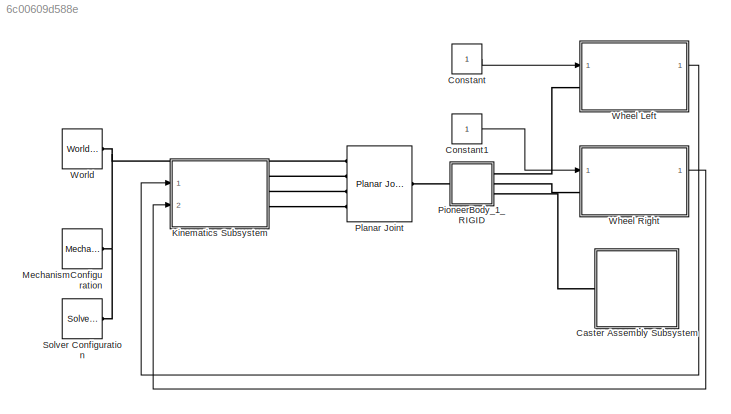
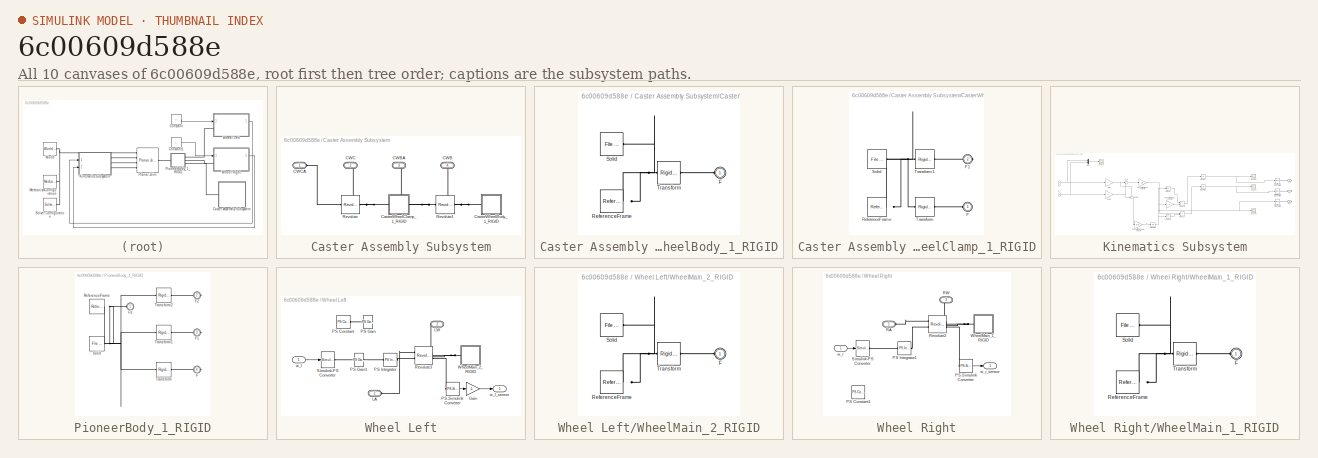
[diagram: thumbnail index - all 10 canvases of the model, root first then tree order]
MODEL slx_6c00609d588e
KIND model
CONFIG AbsTol = auto
CONFIG EnableMultiTasking = on
CONFIG FixedStep = auto
CONFIG InitFcn = r = 0.095; %Wheel radius\nb = 0.33; %Wheel base
CONFIG MaxStep = auto
CONFIG MinStep = auto
CONFIG RelTol = 1e-3
CONFIG SampleTimeConstraint = Unconstrained
CONFIG Solver = ode45
CONFIG SolverName = ode45
CONFIG StartTime = 0.0
CONFIG StopTime = 10.0
BLOCK [SubSystem] Caster Assembly Subsystem
  Ports = [0, 0, 0, 0, 0, 1, 3]
  RequestExecContextInheritance = off
BLOCK [PMIOPort] Caster Assembly Subsystem/CWB
  Port = 4
  Side = Right
BLOCK [PMIOPort] Caster Assembly Subsystem/CWBA
  Port = 3
  Side = Right
BLOCK [PMIOPort] Caster Assembly Subsystem/CWC
  Port = 2
  Side = Right
BLOCK [PMIOPort] Caster Assembly Subsystem/CWCA
  Side = Left
BLOCK [SubSystem] Caster Assembly Subsystem/CasterWheelBody_1_RIGID
  Ports = [0, 0, 0, 0, 0, 1]
  RequestExecContextInheritance = off
BLOCK [PMIOPort] Caster Assembly Subsystem/CasterWheelBody_1_RIGID/F
  Side = Left
BLOCK [Reference] Caster Assembly Subsystem/CasterWheelBody_1_RIGID/ReferenceFrame  REF=sm_lib/Frames and
Transforms/Reference
Frame
  Ports = [0, 0, 0, 0, 0, 0, 1]
  SourceBlock = sm_lib/Frames and\nTransforms/Reference\nFrame
  SourceProductBaseCode = MS
  SourceProductName = Simscape Multibody
  SourceType = Reference\nFrame
BLOCK [Reference] Caster Assembly Subsystem/CasterWheelBody_1_RIGID/Solid  REF=sm_lib/Body Elements/File Solid
  Ports = [0, 0, 0, 0, 0, 0, 1]
  SourceBlock = sm_lib/Body Elements/File Solid
  SourceProductBaseCode = MS
  SourceProductName = Simscape Multibody
  SourceType = File Solid
BLOCK [Reference] Caster Assembly Subsystem/CasterWheelBody_1_RIGID/Transform  REF=sm_lib/Frames and
Transforms/Rigid
Transform
  Ports = [0, 0, 0, 0, 0, 1, 1]
  SourceBlock = sm_lib/Frames and\nTransforms/Rigid\nTransform
  SourceProductBaseCode = MS
  SourceProductName = Simscape Multibody
  SourceType = Rigid\nTransform
BLOCK [SubSystem] Caster Assembly Subsystem/CasterWheelClamp_1_RIGID
  Ports = [0, 0, 0, 0, 0, 1, 1]
  RequestExecContextInheritance = off
BLOCK [PMIOPort] Caster Assembly Subsystem/CasterWheelClamp_1_RIGID/F
  Side = Left
BLOCK [PMIOPort] Caster Assembly Subsystem/CasterWheelClamp_1_RIGID/F1
  Port = 2
  Side = Right
BLOCK [Reference] Caster Assembly Subsystem/CasterWheelClamp_1_RIGID/ReferenceFrame  REF=sm_lib/Frames and
Transforms/Reference
Frame
  Ports = [0, 0, 0, 0, 0, 0, 1]
  SourceBlock = sm_lib/Frames and\nTransforms/Reference\nFrame
  SourceProductBaseCode = MS
  SourceProductName = Simscape Multibody
  SourceType = Reference\nFrame
BLOCK [Reference] Caster Assembly Subsystem/CasterWheelClamp_1_RIGID/Solid  REF=sm_lib/Body Elements/File Solid
  Ports = [0, 0, 0, 0, 0, 0, 1]
  SourceBlock = sm_lib/Body Elements/File Solid
  SourceProductBaseCode = MS
  SourceProductName = Simscape Multibody
  SourceType = File Solid
BLOCK [Reference] Caster Assembly Subsystem/CasterWheelClamp_1_RIGID/Transform  REF=sm_lib/Frames and
Transforms/Rigid
Transform
  Ports = [0, 0, 0, 0, 0, 1, 1]
  SourceBlock = sm_lib/Frames and\nTransforms/Rigid\nTransform
  SourceProductBaseCode = MS
  SourceProductName = Simscape Multibody
  SourceType = Rigid\nTransform
BLOCK [Reference] Caster Assembly Subsystem/CasterWheelClamp_1_RIGID/Transform1  REF=sm_lib/Frames and
Transforms/Rigid
Transform
  Ports = [0, 0, 0, 0, 0, 1, 1]
  SourceBlock = sm_lib/Frames and\nTransforms/Rigid\nTransform
  SourceProductBaseCode = MS
  SourceProductName = Simscape Multibody
  SourceType = Rigid\nTransform
BLOCK [Reference] Caster Assembly Subsystem/Revolute  REF=sm_lib/Joints/Revolute Joint
  Ports = [0, 0, 0, 0, 0, 1, 1]
  SourceBlock = sm_lib/Joints/Revolute Joint
  SourceProductBaseCode = MS
  SourceProductName = Simscape Multibody
  SourceType = Revolute Joint
BLOCK [Reference] Caster Assembly Subsystem/Revolute1  REF=sm_lib/Joints/Revolute Joint
  Ports = [0, 0, 0, 0, 0, 1, 1]
  SourceBlock = sm_lib/Joints/Revolute Joint
  SourceProductBaseCode = MS
  SourceProductName = Simscape Multibody
  SourceType = Revolute Joint
BLOCK [Constant] Constant
BLOCK [Constant] Constant1
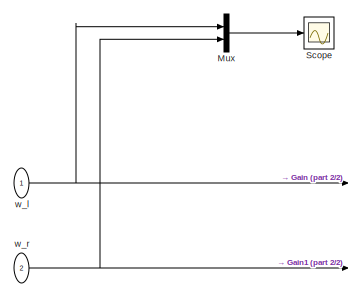
[diagram: Kinematics Subsystem - part 1/2, top left region]
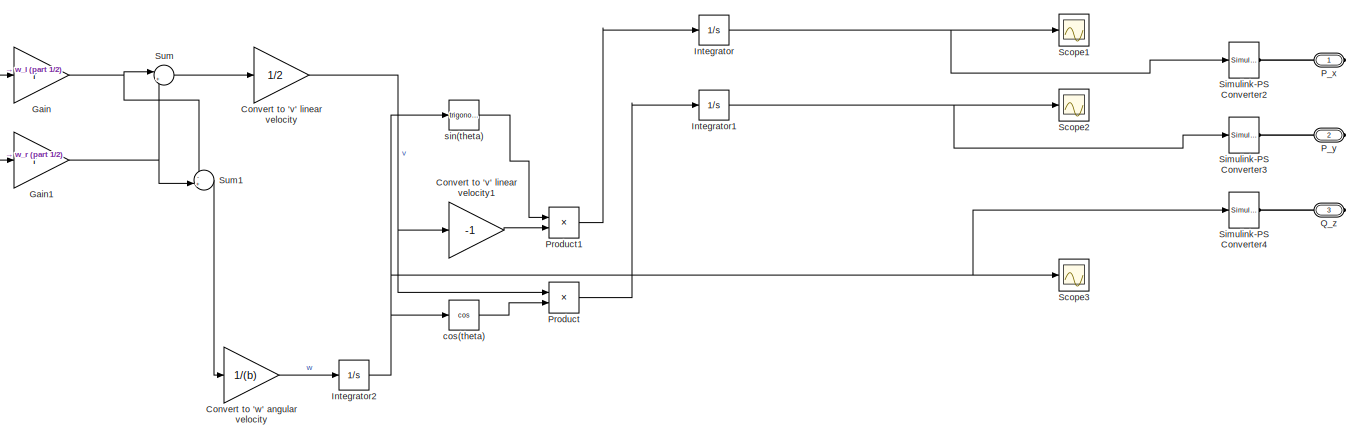
[diagram: Kinematics Subsystem - part 2/2, most of the canvas]
BLOCK [SubSystem] Kinematics Subsystem
  Ports = [2, 0, 0, 0, 0, 0, 3]
  RequestExecContextInheritance = off
BLOCK [Gain] Kinematics Subsystem/Convert to 'v' linear velocity
  Gain = 1/2
  OutDataTypeStr = Inherit: Inherit via internal rule
  ParamDataTypeStr = Inherit: Inherit via internal rule
  SaturateOnIntegerOverflow = off
BLOCK [Gain] Kinematics Subsystem/Convert to 'v' linear velocity1
  Gain = -1
  OutDataTypeStr = Inherit: Inherit via internal rule
  ParamDataTypeStr = Inherit: Inherit via internal rule
  SaturateOnIntegerOverflow = off
BLOCK [Gain] Kinematics Subsystem/Convert to 'w' angular velocity
  Gain = 1/(b)
  OutDataTypeStr = Inherit: Inherit via internal rule
  ParamDataTypeStr = Inherit: Inherit via internal rule
  SaturateOnIntegerOverflow = off
BLOCK [Gain] Kinematics Subsystem/Gain
  Gain = r
  OutDataTypeStr = Inherit: Inherit via internal rule
  ParamDataTypeStr = Inherit: Inherit via internal rule
  SaturateOnIntegerOverflow = off
BLOCK [Gain] Kinematics Subsystem/Gain1
  Gain = r
  OutDataTypeStr = Inherit: Inherit via internal rule
  ParamDataTypeStr = Inherit: Inherit via internal rule
  SaturateOnIntegerOverflow = off
BLOCK [Integrator] Kinematics Subsystem/Integrator
  Ports = [1, 1]
BLOCK [Integrator] Kinematics Subsystem/Integrator1
  Ports = [1, 1]
BLOCK [Integrator] Kinematics Subsystem/Integrator2
  Ports = [1, 1]
BLOCK [Mux] Kinematics Subsystem/Mux
  DisplayOption = bar
  Inputs = 2
  Ports = [2, 1]
BLOCK [PMIOPort] Kinematics Subsystem/P_x
  Side = Right
BLOCK [PMIOPort] Kinematics Subsystem/P_y
  Port = 2
  Side = Right
BLOCK [Product] Kinematics Subsystem/Product
  InputSameDT = off
  OutDataTypeStr = Inherit: Inherit via internal rule
  Ports = [2, 1]
  RndMeth = Floor
  SaturateOnIntegerOverflow = off
BLOCK [Product] Kinematics Subsystem/Product1
  InputSameDT = off
  OutDataTypeStr = Inherit: Inherit via internal rule
  Ports = [2, 1]
  RndMeth = Floor
  SaturateOnIntegerOverflow = off
BLOCK [PMIOPort] Kinematics Subsystem/Q_z
  Port = 3
  Side = Right
BLOCK [Scope] Kinematics Subsystem/Scope
  Floating = off
  NumInputPorts = 1
  Ports = [1]
  ScopeSpecificationString = C++SS(StrPVP('Location','[5, 45, 1925, 1155]'),StrPVP('Open','off'),MxPVP('AxesTitles',54,'struct(''axes1'',''%<SignalLabel>'')'),MxPVP('ScopeGraphics',57,'struct(''FigureColor'',''[0.5 0.5 0.5]'',''AxesColor'',''[0 0 0]'',''AxesTickColor'',''[1 1 1]'',''LineColors'',''[1 1 0;1 0 1;0 1 1;1 0 0;0 1 0;0 0 1]'',''LineStyles'',''-|-|-|-|-|-'',''LineWidths'',''[0.5 0.5 0.5 0.5 0.5 0.5]'',''MarkerStyles...<+283ch>
BLOCK [Scope] Kinematics Subsystem/Scope1
  Floating = off
  NumInputPorts = 1
  Ports = [1]
  ScopeSpecificationString = C++SS(StrPVP('Location','[1, 45, 1921, 1155]'),StrPVP('Open','off'),MxPVP('AxesTitles',54,'struct(''axes1'',''%<SignalLabel>'')'),MxPVP('ScopeGraphics',57,'struct(''FigureColor'',''[0.5 0.5 0.5]'',''AxesColor'',''[0 0 0]'',''AxesTickColor'',''[1 1 1]'',''LineColors'',''[1 1 0;1 0 1;0 1 1;1 0 0;0 1 0;0 0 1]'',''LineStyles'',''-|-|-|-|-|-'',''LineWidths'',''[0.5 0.5 0.5 0.5 0.5 0.5]'',''MarkerStyles...<+270ch>
BLOCK [Scope] Kinematics Subsystem/Scope2
  Floating = off
  NumInputPorts = 1
  Ports = [1]
  ScopeSpecificationString = C++SS(StrPVP('Location','[1, 45, 1921, 1155]'),StrPVP('Open','off'),MxPVP('AxesTitles',54,'struct(''axes1'',''%<SignalLabel>'')'),MxPVP('ScopeGraphics',57,'struct(''FigureColor'',''[0.5 0.5 0.5]'',''AxesColor'',''[0 0 0]'',''AxesTickColor'',''[1 1 1]'',''LineColors'',''[1 1 0;1 0 1;0 1 1;1 0 0;0 1 0;0 0 1]'',''LineStyles'',''-|-|-|-|-|-'',''LineWidths'',''[0.5 0.5 0.5 0.5 0.5 0.5]'',''MarkerStyles...<+270ch>
BLOCK [Scope] Kinematics Subsystem/Scope3
  Floating = off
  NumInputPorts = 1
  Ports = [1]
  ScopeSpecificationString = C++SS(StrPVP('Location','[5, 45, 1925, 1155]'),StrPVP('Open','off'),MxPVP('AxesTitles',54,'struct(''axes1'',''%<SignalLabel>'')'),MxPVP('ScopeGraphics',57,'struct(''FigureColor'',''[0.5 0.5 0.5]'',''AxesColor'',''[0 0 0]'',''AxesTickColor'',''[1 1 1]'',''LineColors'',''[1 1 0;1 0 1;0 1 1;1 0 0;0 1 0;0 0 1]'',''LineStyles'',''-|-|-|-|-|-'',''LineWidths'',''[0.5 0.5 0.5 0.5 0.5 0.5]'',''MarkerStyles...<+270ch>
BLOCK [Reference] Kinematics Subsystem/Simulink-PS Converter2  REF=nesl_utility/Simulink-PS
Converter
  Ports = [1, 0, 0, 0, 0, 0, 1]
  SourceBlock = nesl_utility/Simulink-PS\nConverter
  SourceProductBaseCode = SS
  SourceProductName = Simscape
  SourceType = Simulink-PS\nConverter
BLOCK [Reference] Kinematics Subsystem/Simulink-PS Converter3  REF=nesl_utility/Simulink-PS
Converter
  Ports = [1, 0, 0, 0, 0, 0, 1]
  SourceBlock = nesl_utility/Simulink-PS\nConverter
  SourceProductBaseCode = SS
  SourceProductName = Simscape
  SourceType = Simulink-PS\nConverter
BLOCK [Reference] Kinematics Subsystem/Simulink-PS Converter4  REF=nesl_utility/Simulink-PS
Converter
  Ports = [1, 0, 0, 0, 0, 0, 1]
  SourceBlock = nesl_utility/Simulink-PS\nConverter
  SourceProductBaseCode = SS
  SourceProductName = Simscape
  SourceType = Simulink-PS\nConverter
BLOCK [Sum] Kinematics Subsystem/Sum
  IconShape = round
  InputSameDT = off
  Inputs = |++
  OutDataTypeStr = Inherit: Inherit via internal rule
  Ports = [2, 1]
  SaturateOnIntegerOverflow = off
BLOCK [Sum] Kinematics Subsystem/Sum1
  IconShape = round
  InputSameDT = off
  Inputs = -+|
  OutDataTypeStr = Inherit: Inherit via internal rule
  Ports = [2, 1]
  SaturateOnIntegerOverflow = off
BLOCK [Trigonometry] Kinematics Subsystem/cos(theta)
  Operator = cos
  Ports = [1, 1]
BLOCK [Trigonometry] Kinematics Subsystem/sin(theta)
  Ports = [1, 1]
BLOCK [Inport] Kinematics Subsystem/w_l
  IconDisplay = Port number
BLOCK [Inport] Kinematics Subsystem/w_r
  IconDisplay = Port number
  Port = 2
BLOCK [Reference] MechanismConfiguration  REF=sm_lib/Utilities/Mechanism
Configuration
  Ports = [0, 0, 0, 0, 0, 0, 1]
  SourceBlock = sm_lib/Utilities/Mechanism\nConfiguration
  SourceProductBaseCode = MS
  SourceProductName = Simscape Multibody
  SourceType = Mechanism\nConfiguration
BLOCK [SubSystem] PioneerBody_1_RIGID
  Ports = [0, 0, 0, 0, 0, 1, 3]
  RequestExecContextInheritance = off
BLOCK [PMIOPort] PioneerBody_1_RIGID/F
  Port = 4
  Side = Right
BLOCK [PMIOPort] PioneerBody_1_RIGID/F1
  Port = 3
  Side = Right
BLOCK [PMIOPort] PioneerBody_1_RIGID/F2
  Port = 2
  Side = Right
BLOCK [PMIOPort] PioneerBody_1_RIGID/F3
  Side = Left
BLOCK [Reference] PioneerBody_1_RIGID/ReferenceFrame  REF=sm_lib/Frames and
Transforms/Reference
Frame
  Ports = [0, 0, 0, 0, 0, 0, 1]
  SourceBlock = sm_lib/Frames and\nTransforms/Reference\nFrame
  SourceProductBaseCode = MS
  SourceProductName = Simscape Multibody
  SourceType = Reference\nFrame
BLOCK [Reference] PioneerBody_1_RIGID/Solid  REF=sm_lib/Body Elements/File Solid
  Ports = [0, 0, 0, 0, 0, 0, 1]
  SourceBlock = sm_lib/Body Elements/File Solid
  SourceProductBaseCode = MS
  SourceProductName = Simscape Multibody
  SourceType = File Solid
BLOCK [Reference] PioneerBody_1_RIGID/Transform  REF=sm_lib/Frames and
Transforms/Rigid
Transform
  Ports = [0, 0, 0, 0, 0, 1, 1]
  SourceBlock = sm_lib/Frames and\nTransforms/Rigid\nTransform
  SourceProductBaseCode = MS
  SourceProductName = Simscape Multibody
  SourceType = Rigid\nTransform
BLOCK [Reference] PioneerBody_1_RIGID/Transform1  REF=sm_lib/Frames and
Transforms/Rigid
Transform
  Ports = [0, 0, 0, 0, 0, 1, 1]
  SourceBlock = sm_lib/Frames and\nTransforms/Rigid\nTransform
  SourceProductBaseCode = MS
  SourceProductName = Simscape Multibody
  SourceType = Rigid\nTransform
BLOCK [Reference] PioneerBody_1_RIGID/Transform2  REF=sm_lib/Frames and
Transforms/Rigid
Transform
  Ports = [0, 0, 0, 0, 0, 1, 1]
  SourceBlock = sm_lib/Frames and\nTransforms/Rigid\nTransform
  SourceProductBaseCode = MS
  SourceProductName = Simscape Multibody
  SourceType = Rigid\nTransform
BLOCK [Reference] Planar Joint  REF=sm_lib/Joints/Planar Joint
  Ports = [0, 0, 0, 0, 0, 4, 1]
  SourceBlock = sm_lib/Joints/Planar Joint
  SourceProductBaseCode = MS
  SourceProductName = Simscape Multibody
  SourceType = Planar Joint
BLOCK [Reference] Solver Configuration  REF=nesl_utility/Solver
Configuration
  Ports = [0, 0, 0, 0, 0, 0, 1]
  SourceBlock = nesl_utility/Solver\nConfiguration
  SourceProductBaseCode = SS
  SourceProductName = Simscape
  SourceType = Solver\nConfiguration
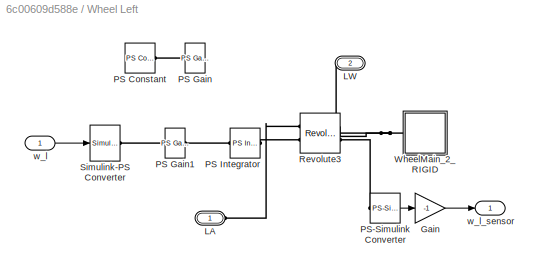
BLOCK [SubSystem] Wheel Left
  Ports = [1, 1, 0, 0, 0, 1, 1]
  RequestExecContextInheritance = off
BLOCK [Gain] Wheel Left/Gain
  Gain = -1
  OutDataTypeStr = Inherit: Inherit via internal rule
  ParamDataTypeStr = Inherit: Inherit via internal rule
  SaturateOnIntegerOverflow = off
BLOCK [PMIOPort] Wheel Left/LA
  Side = Left
BLOCK [PMIOPort] Wheel Left/LW
  Port = 2
  Side = Right
BLOCK [Reference] Wheel Left/PS Constant  REF=fl_lib/Physical Signals/Sources/PS Constant
  Commented = on
  Ports = [0, 0, 0, 0, 0, 0, 1]
  SourceBlock = fl_lib/Physical Signals/Sources/PS Constant
  SourceProductBaseCode = SS
  SourceProductName = Simscape
  SourceType = PS Constant
BLOCK [Reference] Wheel Left/PS Gain  REF=fl_lib/Physical Signals/Functions/PS Gain
  Commented = on
  Ports = [0, 0, 0, 0, 0, 1, 1]
  SourceBlock = fl_lib/Physical Signals/Functions/PS Gain
  SourceProductBaseCode = SS
  SourceProductName = Simscape
  SourceType = PS Gain
BLOCK [Reference] Wheel Left/PS Gain1  REF=fl_ps_legacy_lib/Legacy Physical
Signals/Functions/PS Gain
  Ports = [0, 0, 0, 0, 0, 1, 1]
  SourceBlock = fl_ps_legacy_lib/Legacy Physical\nSignals/Functions/PS Gain
  SourceProductBaseCode = SS
  SourceProductName = Simscape
  SourceType = PS Gain
BLOCK [Reference] Wheel Left/PS Integrator  REF=fl_ps_legacy_lib/Legacy Physical
Signals/Linear Operators/PS Integrator
  Ports = [0, 0, 0, 0, 0, 1, 1]
  SourceBlock = fl_ps_legacy_lib/Legacy Physical\nSignals/Linear Operators/PS Integrator
  SourceProductBaseCode = SS
  SourceProductName = Simscape
  SourceType = PS Integrator
BLOCK [Reference] Wheel Left/PS-Simulink Converter  REF=nesl_utility/PS-Simulink
Converter
  Ports = [0, 1, 0, 0, 0, 1]
  SourceBlock = nesl_utility/PS-Simulink\nConverter
  SourceProductBaseCode = SS
  SourceProductName = Simscape
  SourceType = PS-Simulink\nConverter
BLOCK [Reference] Wheel Left/Revolute3  REF=sm_lib/Joints/Revolute Joint
  Ports = [0, 0, 0, 0, 0, 2, 2]
  SourceBlock = sm_lib/Joints/Revolute Joint
  SourceProductBaseCode = MS
  SourceProductName = Simscape Multibody
  SourceType = Revolute Joint
BLOCK [Reference] Wheel Left/Simulink-PS Converter  REF=nesl_utility/Simulink-PS
Converter
  Ports = [1, 0, 0, 0, 0, 0, 1]
  SourceBlock = nesl_utility/Simulink-PS\nConverter
  SourceProductBaseCode = SS
  SourceProductName = Simscape
  SourceType = Simulink-PS\nConverter
BLOCK [SubSystem] Wheel Left/WheelMain_2_RIGID
  Ports = [0, 0, 0, 0, 0, 1]
  RequestExecContextInheritance = off
BLOCK [PMIOPort] Wheel Left/WheelMain_2_RIGID/F
  Side = Left
BLOCK [Reference] Wheel Left/WheelMain_2_RIGID/ReferenceFrame  REF=sm_lib/Frames and
Transforms/Reference
Frame
  Ports = [0, 0, 0, 0, 0, 0, 1]
  SourceBlock = sm_lib/Frames and\nTransforms/Reference\nFrame
  SourceProductBaseCode = MS
  SourceProductName = Simscape Multibody
  SourceType = Reference\nFrame
BLOCK [Reference] Wheel Left/WheelMain_2_RIGID/Solid  REF=sm_lib/Body Elements/File Solid
  Ports = [0, 0, 0, 0, 0, 0, 1]
  SourceBlock = sm_lib/Body Elements/File Solid
  SourceProductBaseCode = MS
  SourceProductName = Simscape Multibody
  SourceType = File Solid
BLOCK [Reference] Wheel Left/WheelMain_2_RIGID/Transform  REF=sm_lib/Frames and
Transforms/Rigid
Transform
  Ports = [0, 0, 0, 0, 0, 1, 1]
  SourceBlock = sm_lib/Frames and\nTransforms/Rigid\nTransform
  SourceProductBaseCode = MS
  SourceProductName = Simscape Multibody
  SourceType = Rigid\nTransform
BLOCK [Inport] Wheel Left/w_l
  IconDisplay = Port number
BLOCK [Outport] Wheel Left/w_l_sensor
  IconDisplay = Port number
BLOCK [SubSystem] Wheel Right
  Ports = [1, 1, 0, 0, 0, 1, 1]
  RequestExecContextInheritance = off
BLOCK [Reference] Wheel Right/PS Constant1  REF=fl_lib/Physical Signals/Sources/PS Constant
  Commented = on
  Ports = [0, 0, 0, 0, 0, 0, 1]
  SourceBlock = fl_lib/Physical Signals/Sources/PS Constant
  SourceProductBaseCode = SS
  SourceProductName = Simscape
  SourceType = PS Constant
BLOCK [Reference] Wheel Right/PS Integrator1  REF=fl_ps_legacy_lib/Legacy Physical
Signals/Linear Operators/PS Integrator
  Ports = [0, 0, 0, 0, 0, 1, 1]
  SourceBlock = fl_ps_legacy_lib/Legacy Physical\nSignals/Linear Operators/PS Integrator
  SourceProductBaseCode = SS
  SourceProductName = Simscape
  SourceType = PS Integrator
BLOCK [Reference] Wheel Right/PS-Simulink Converter  REF=nesl_utility/PS-Simulink
Converter
  Ports = [0, 1, 0, 0, 0, 1]
  SourceBlock = nesl_utility/PS-Simulink\nConverter
  SourceProductBaseCode = SS
  SourceProductName = Simscape
  SourceType = PS-Simulink\nConverter
BLOCK [PMIOPort] Wheel Right/RA
  Side = Left
BLOCK [PMIOPort] Wheel Right/RW
  Port = 2
  Side = Right
BLOCK [Reference] Wheel Right/Revolute2  REF=sm_lib/Joints/Revolute Joint
  Ports = [0, 0, 0, 0, 0, 2, 2]
  SourceBlock = sm_lib/Joints/Revolute Joint
  SourceProductBaseCode = MS
  SourceProductName = Simscape Multibody
  SourceType = Revolute Joint
BLOCK [Reference] Wheel Right/Simulink-PS Converter  REF=nesl_utility/Simulink-PS
Converter
  Ports = [1, 0, 0, 0, 0, 0, 1]
  SourceBlock = nesl_utility/Simulink-PS\nConverter
  SourceProductBaseCode = SS
  SourceProductName = Simscape
  SourceType = Simulink-PS\nConverter
BLOCK [SubSystem] Wheel Right/WheelMain_1_RIGID
  Ports = [0, 0, 0, 0, 0, 1]
  RequestExecContextInheritance = off
BLOCK [PMIOPort] Wheel Right/WheelMain_1_RIGID/F
  Side = Left
BLOCK [Reference] Wheel Right/WheelMain_1_RIGID/ReferenceFrame  REF=sm_lib/Frames and
Transforms/Reference
Frame
  Ports = [0, 0, 0, 0, 0, 0, 1]
  SourceBlock = sm_lib/Frames and\nTransforms/Reference\nFrame
  SourceProductBaseCode = MS
  SourceProductName = Simscape Multibody
  SourceType = Reference\nFrame
BLOCK [Reference] Wheel Right/WheelMain_1_RIGID/Solid  REF=sm_lib/Body Elements/File Solid
  Ports = [0, 0, 0, 0, 0, 0, 1]
  SourceBlock = sm_lib/Body Elements/File Solid
  SourceProductBaseCode = MS
  SourceProductName = Simscape Multibody
  SourceType = File Solid
BLOCK [Reference] Wheel Right/WheelMain_1_RIGID/Transform  REF=sm_lib/Frames and
Transforms/Rigid
Transform
  Ports = [0, 0, 0, 0, 0, 1, 1]
  SourceBlock = sm_lib/Frames and\nTransforms/Rigid\nTransform
  SourceProductBaseCode = MS
  SourceProductName = Simscape Multibody
  SourceType = Rigid\nTransform
BLOCK [Inport] Wheel Right/w_r
  IconDisplay = Port number
BLOCK [Outport] Wheel Right/w_r_sensor
  IconDisplay = Port number
BLOCK [Reference] World  REF=sm_lib/Frames and
Transforms/World Frame
  Ports = [0, 0, 0, 0, 0, 0, 1]
  SourceBlock = sm_lib/Frames and\nTransforms/World Frame
  SourceProductBaseCode = MS
  SourceProductName = Simscape Multibody
  SourceType = World Frame
LINE Constant1:1 -> Wheel Right:1
LINE Constant:1 -> Wheel Left:1
LINE Kinematics Subsystem/Convert to 'v' linear velocity1:1 -> Kinematics Subsystem/Product1:2
NET Kinematics Subsystem/Convert to 'v' linear velocity:1 -> Kinematics Subsystem/Convert to 'v' linear velocity1:1, Kinematics Subsystem/Product:1
LINE Kinematics Subsystem/Convert to 'w' angular velocity:1 -> Kinematics Subsystem/Integrator2:1
NET Kinematics Subsystem/Gain1:1 -> Kinematics Subsystem/Sum1:2, Kinematics Subsystem/Sum:2
NET Kinematics Subsystem/Gain:1 -> Kinematics Subsystem/Sum1:1, Kinematics Subsystem/Sum:1
NET Kinematics Subsystem/Integrator1:1 -> Kinematics Subsystem/Scope2:1, Kinematics Subsystem/Simulink-PS Converter3:1
NET Kinematics Subsystem/Integrator2:1 -> Kinematics Subsystem/Scope3:1, Kinematics Subsystem/Simulink-PS Converter4:1, Kinematics Subsystem/cos(theta):1, Kinematics Subsystem/sin(theta):1
NET Kinematics Subsystem/Integrator:1 -> Kinematics Subsystem/Scope1:1, Kinematics Subsystem/Simulink-PS Converter2:1
LINE Kinematics Subsystem/Mux:1 -> Kinematics Subsystem/Scope:1
LINE Kinematics Subsystem/Product1:1 -> Kinematics Subsystem/Integrator:1
LINE Kinematics Subsystem/Product:1 -> Kinematics Subsystem/Integrator1:1
LINE Kinematics Subsystem/Sum1:1 -> Kinematics Subsystem/Convert to 'w' angular velocity:1
LINE Kinematics Subsystem/Sum:1 -> Kinematics Subsystem/Convert to 'v' linear velocity:1
LINE Kinematics Subsystem/cos(theta):1 -> Kinematics Subsystem/Product:2
LINE Kinematics Subsystem/sin(theta):1 -> Kinematics Subsystem/Product1:1
NET Kinematics Subsystem/w_l:1 -> Kinematics Subsystem/Gain:1, Kinematics Subsystem/Mux:1
NET Kinematics Subsystem/w_r:1 -> Kinematics Subsystem/Gain1:1, Kinematics Subsystem/Mux:2
LINE Wheel Left/Gain:1 -> Wheel Left/w_l_sensor:1
LINE Wheel Left/PS-Simulink Converter:1 -> Wheel Left/Gain:1
LINE Wheel Left/w_l:1 -> Wheel Left/Simulink-PS Converter:1
LINE Wheel Left:1 -> Kinematics Subsystem:1
LINE Wheel Right/PS-Simulink Converter:1 -> Wheel Right/w_r_sensor:1
LINE Wheel Right/w_r:1 -> Wheel Right/Simulink-PS Converter:1
LINE Wheel Right:1 -> Kinematics Subsystem:2
PNET net1: Caster Assembly Subsystem/CWB:RConn1 -- Caster Assembly Subsystem/CasterWheelBody_1_RIGID:LConn1 -- Caster Assembly Subsystem/Revolute1:RConn1
PNET net2: Caster Assembly Subsystem/CWBA:RConn1 -- Caster Assembly Subsystem/CasterWheelClamp_1_RIGID:RConn1 -- Caster Assembly Subsystem/Revolute1:LConn1
PNET net3: Caster Assembly Subsystem/CWC:RConn1 -- Caster Assembly Subsystem/CasterWheelClamp_1_RIGID:LConn1 -- Caster Assembly Subsystem/Revolute:RConn1
PLINE Caster Assembly Subsystem/CWCA:RConn1 -- Caster Assembly Subsystem/Revolute:LConn1
PLINE Caster Assembly Subsystem/CasterWheelBody_1_RIGID/F:RConn1 -- Caster Assembly Subsystem/CasterWheelBody_1_RIGID/Transform:RConn1
PNET net4: Caster Assembly Subsystem/CasterWheelBody_1_RIGID/ReferenceFrame:RConn1 -- Caster Assembly Subsystem/CasterWheelBody_1_RIGID/Solid:RConn1 -- Caster Assembly Subsystem/CasterWheelBody_1_RIGID/Transform:LConn1
PLINE Caster Assembly Subsystem/CasterWheelClamp_1_RIGID/F1:RConn1 -- Caster Assembly Subsystem/CasterWheelClamp_1_RIGID/Transform1:RConn1
PLINE Caster Assembly Subsystem/CasterWheelClamp_1_RIGID/F:RConn1 -- Caster Assembly Subsystem/CasterWheelClamp_1_RIGID/Transform:RConn1
PNET net5: Caster Assembly Subsystem/CasterWheelClamp_1_RIGID/ReferenceFrame:RConn1 -- Caster Assembly Subsystem/CasterWheelClamp_1_RIGID/Solid:RConn1 -- Caster Assembly Subsystem/CasterWheelClamp_1_RIGID/Transform1:LConn1 -- Caster Assembly Subsystem/CasterWheelClamp_1_RIGID/Transform:LConn1
PLINE Caster Assembly Subsystem:LConn1 -- PioneerBody_1_RIGID:RConn3
PLINE Kinematics Subsystem/P_x:RConn1 -- Kinematics Subsystem/Simulink-PS Converter2:RConn1
PLINE Kinematics Subsystem/P_y:RConn1 -- Kinematics Subsystem/Simulink-PS Converter3:RConn1
PLINE Kinematics Subsystem/Q_z:RConn1 -- Kinematics Subsystem/Simulink-PS Converter4:RConn1
PLINE Kinematics Subsystem:RConn1 -- Planar Joint:LConn2
PLINE Kinematics Subsystem:RConn2 -- Planar Joint:LConn3
PLINE Kinematics Subsystem:RConn3 -- Planar Joint:LConn4
PNET net6: MechanismConfiguration:RConn1 -- Planar Joint:LConn1 -- Solver Configuration:RConn1 -- World:RConn1
PLINE PioneerBody_1_RIGID/F1:RConn1 -- PioneerBody_1_RIGID/Transform1:RConn1
PLINE PioneerBody_1_RIGID/F2:RConn1 -- PioneerBody_1_RIGID/Transform2:RConn1
PNET net7: PioneerBody_1_RIGID/F3:RConn1 -- PioneerBody_1_RIGID/ReferenceFrame:RConn1 -- PioneerBody_1_RIGID/Solid:RConn1 -- PioneerBody_1_RIGID/Transform1:LConn1 -- PioneerBody_1_RIGID/Transform2:LConn1 -- PioneerBody_1_RIGID/Transform:LConn1
PLINE PioneerBody_1_RIGID/F:RConn1 -- PioneerBody_1_RIGID/Transform:RConn1
PLINE PioneerBody_1_RIGID:LConn1 -- Planar Joint:RConn1
PLINE PioneerBody_1_RIGID:RConn1 -- Wheel Left:LConn1
PLINE PioneerBody_1_RIGID:RConn2 -- Wheel Right:LConn1
PLINE Wheel Left/LA:RConn1 -- Wheel Left/Revolute3:LConn1
PNET net8: Wheel Left/LW:RConn1 -- Wheel Left/Revolute3:RConn1 -- Wheel Left/WheelMain_2_RIGID:LConn1
PLINE Wheel Left/PS Constant:RConn1 -- Wheel Left/PS Gain:LConn1
PLINE Wheel Left/PS Gain1:LConn1 -- Wheel Left/Simulink-PS Converter:RConn1
PLINE Wheel Left/PS Gain1:RConn1 -- Wheel Left/PS Integrator:LConn1
PLINE Wheel Left/PS Integrator:RConn1 -- Wheel Left/Revolute3:LConn2
PLINE Wheel Left/PS-Simulink Converter:LConn1 -- Wheel Left/Revolute3:RConn2
PLINE Wheel Left/WheelMain_2_RIGID/F:RConn1 -- Wheel Left/WheelMain_2_RIGID/Transform:RConn1
PNET net9: Wheel Left/WheelMain_2_RIGID/ReferenceFrame:RConn1 -- Wheel Left/WheelMain_2_RIGID/Solid:RConn1 -- Wheel Left/WheelMain_2_RIGID/Transform:LConn1
PLINE Wheel Right/PS Integrator1:LConn1 -- Wheel Right/Simulink-PS Converter:RConn1
PLINE Wheel Right/PS Integrator1:RConn1 -- Wheel Right/Revolute2:LConn2
PLINE Wheel Right/PS-Simulink Converter:LConn1 -- Wheel Right/Revolute2:RConn2
PLINE Wheel Right/RA:RConn1 -- Wheel Right/Revolute2:LConn1
PNET net10: Wheel Right/RW:RConn1 -- Wheel Right/Revolute2:RConn1 -- Wheel Right/WheelMain_1_RIGID:LConn1
PLINE Wheel Right/WheelMain_1_RIGID/F:RConn1 -- Wheel Right/WheelMain_1_RIGID/Transform:RConn1
PNET net11: Wheel Right/WheelMain_1_RIGID/ReferenceFrame:RConn1 -- Wheel Right/WheelMain_1_RIGID/Solid:RConn1 -- Wheel Right/WheelMain_1_RIGID/Transform:LConn1
note: NET lines group one-source signal fan-out (src -> all destinations, sorted); 1:1 wires keep LINE; PNET lines group multi-terminal physical nets as a canonical sorted terminal list (undirected conserving connections); 2-terminal nets keep the pairwise PLINE form
